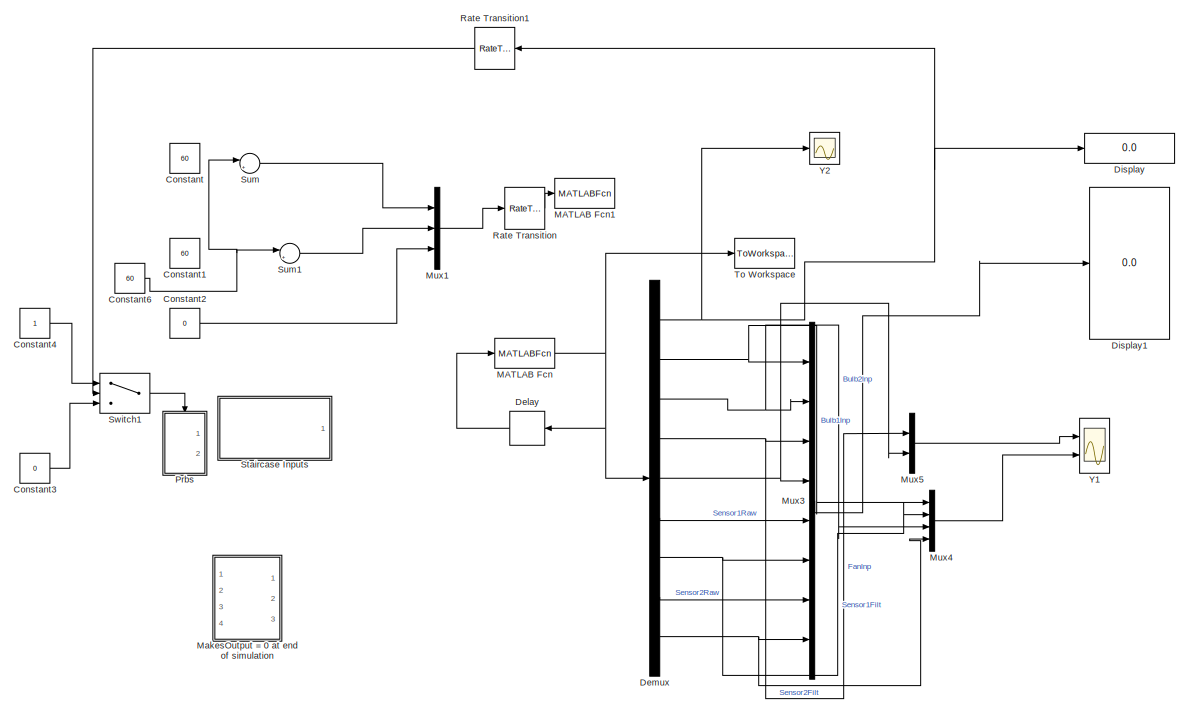
[diagram: root canvas - part 1/2, most of the canvas]
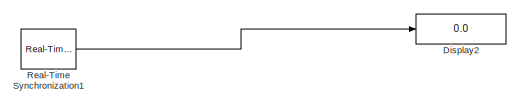
[diagram: root canvas - part 2/2, bottom right region]
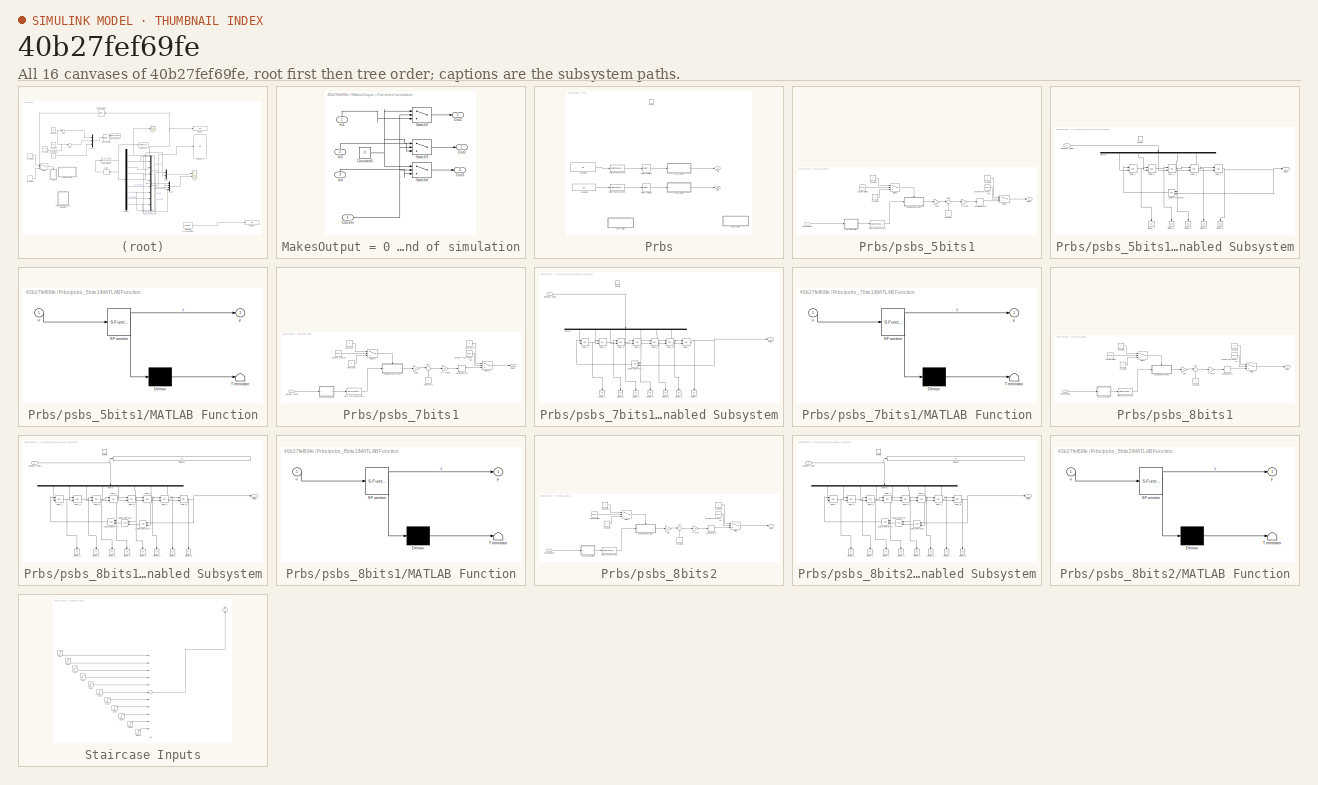
[diagram: thumbnail index - all 16 canvases of the model, root first then tree order]
MODEL slx_40b27fef69fe
KIND model
CONFIG AbsTol = auto
CONFIG EnableMultiTasking = on
CONFIG FixedStep = .01
CONFIG MaxStep = auto
CONFIG MinStep = auto
CONFIG RelTol = 1e-3
CONFIG SampleTimeConstraint = Unconstrained
CONFIG Solver = FixedStepDiscrete
CONFIG SolverName = FixedStepDiscrete
CONFIG StartFcn = s_2 = serial(Port,'BaudRate',115200,'FlowControl','none','Parity','none','DataBits',8,'StopBits',1,'Timeout',2);\ns_2.InputBufferSize=1024*5; s_2.OutputBufferSize=1024*5;\ns_2.Terminator='CR';\n\nfopen(s_2);\n
CONFIG StartTime = 0.0
CONFIG StopFcn = fclose(s_2);
CONFIG StopTime = inf
BLOCK [Constant] Constant
  Commented = on
  OutDataTypeStr = double
  SampleTime = 0.1
  Value = 60
BLOCK [Constant] Constant1
  Commented = on
  OutDataTypeStr = double
  SampleTime = 0.1
  Value = 60
BLOCK [Constant] Constant2
  Commented = on
  OutDataTypeStr = double
  SampleTime = 0.1
  Value = 0
BLOCK [Constant] Constant3
  Commented = on
  SampleTime = 0.1
  Value = 0
BLOCK [Constant] Constant4
  Commented = on
  SampleTime = 0.1
BLOCK [Constant] Constant6
  Commented = on
  OutDataTypeStr = double
  SampleTime = 0.1
  Value = 60
BLOCK [Delay] Delay
  DelayLength = 1
  InitialCondition = 0
  InputPortMap = u0
  Ports = [1, 1]
  SampleTime = 1
BLOCK [Demux] Demux
  DisplayOption = bar
  Outputs = 9
  Ports = [1, 9]
BLOCK [Display] Display
  Decimation = 1
  Ports = [1]
BLOCK [Display] Display1
  Decimation = 1
  Ports = [1]
BLOCK [Display] Display2
  Decimation = 1
  Ports = [1]
BLOCK [MATLABFcn] MATLAB Fcn
  MATLABFcn = serialRead(u,s_2)
  OutputDimensions = 9
  Ports = [1, 1]
BLOCK [MATLABFcn] MATLAB Fcn1
  Commented = on
  MATLABFcn = serialWriteLightBox(u,s_2)
  OutputDimensions = 0
  Ports = [1]
BLOCK [SubSystem] MakesOutput = 0 at end of simulation
  Commented = on
  Ports = [4, 3]
  RequestExecContextInheritance = off
  Variant = off
BLOCK [Inport] MakesOutput = 0 at end of simulation/ClockIn
  IconDisplay = Port number
  Port = 4
BLOCK [Constant] MakesOutput = 0 at end of simulation/Constant5
  SampleTime = 0.1
  Value = 0
BLOCK [Inport] MakesOutput = 0 at end of simulation/In1
  IconDisplay = Port number
BLOCK [Inport] MakesOutput = 0 at end of simulation/In3
  IconDisplay = Port number
  Port = 2
BLOCK [Inport] MakesOutput = 0 at end of simulation/In4
  IconDisplay = Port number
  Port = 3
BLOCK [Outport] MakesOutput = 0 at end of simulation/Out1
  IconDisplay = Port number
BLOCK [Outport] MakesOutput = 0 at end of simulation/Out2
  IconDisplay = Port number
  Port = 2
BLOCK [Outport] MakesOutput = 0 at end of simulation/Out3
  IconDisplay = Port number
  Port = 3
BLOCK [Switch] MakesOutput = 0 at end of simulation/Switch2
  InputSameDT = off
  SampleTime = 0.1
  SaturateOnIntegerOverflow = off
  Threshold = 1990
BLOCK [Switch] MakesOutput = 0 at end of simulation/Switch3
  InputSameDT = off
  SampleTime = 0.1
  SaturateOnIntegerOverflow = off
  Threshold = 1990
BLOCK [Switch] MakesOutput = 0 at end of simulation/Switch4
  InputSameDT = off
  SampleTime = 0.1
  SaturateOnIntegerOverflow = off
  Threshold = 1990
BLOCK [Mux] Mux1
  Commented = on
  DisplayOption = bar
  Inputs = 3
  Ports = [3, 1]
BLOCK [Mux] Mux3
  DisplayOption = bar
  Inputs = 8
  Ports = [8, 1]
BLOCK [Mux] Mux4
  DisplayOption = bar
  Ports = [4, 1]
BLOCK [Mux] Mux5
  DisplayOption = bar
  Inputs = 2
  Ports = [2, 1]
BLOCK [SubSystem] Prbs
  Commented = on
  Ports = [0, 2, 1]
  RequestExecContextInheritance = off
  Variant = off
BLOCK [Constant] Prbs/Constant1
  OutDataTypeStr = double
  SampleTime = 0.1
  Value = 29
BLOCK [Constant] Prbs/Constant2
  OutDataTypeStr = double
  SampleTime = 0.1
  Value = 30
BLOCK [DataTypeConversion] Prbs/Data Type Conversion
  OutDataTypeStr = uint16
  RndMeth = Floor
  SaturateOnIntegerOverflow = off
BLOCK [DataTypeConversion] Prbs/Data Type Conversion2
  OutDataTypeStr = uint16
  RndMeth = Floor
  SaturateOnIntegerOverflow = off
BLOCK [EnablePort] Prbs/Enable
  Ports = []
BLOCK [Outport] Prbs/Out1
  IconDisplay = Port number
BLOCK [Outport] Prbs/Out2
  IconDisplay = Port number
  Port = 2
BLOCK [RateTransition] Prbs/Rate Transition1
  OutPortSampleTime = 0.1
BLOCK [RateTransition] Prbs/Rate Transition2
  OutPortSampleTime = 0.1
BLOCK [SubSystem] Prbs/psbs_5bits1
  Commented = on
  Ports = [1, 1]
  RequestExecContextInheritance = off
  Variant = off
BLOCK [Gain] Prbs/psbs_5bits1/+//- Level1
  Gain = Lv
  OutDataTypeStr = Inherit: Inherit via internal rule
  ParamDataTypeStr = Inherit: Inherit via internal rule
  SampleTime = T
  SaturateOnIntegerOverflow = off
BLOCK [Constant] Prbs/psbs_5bits1/Constant2
  SampleTime = T
BLOCK [Constant] Prbs/psbs_5bits1/Constant4
  SampleTime = T
  Value = 0
BLOCK [Constant] Prbs/psbs_5bits1/Constant5
  SampleTime = T
  Value = 0
BLOCK [Constant] Prbs/psbs_5bits1/Constant6
  SampleTime = T
BLOCK [Reference] Prbs/psbs_5bits1/Counter Free-Running1  REF=simulink/Sources/Counter
Free-Running
  Ports = [0, 1]
  SourceBlock = simulink/Sources/Counter\nFree-Running
  SourceType = Counter Free-Running
BLOCK [Reference] Prbs/psbs_5bits1/Counter Limited  REF=simulink/Sources/Counter
Limited
  Ports = [0, 1]
  SourceBlock = simulink/Sources/Counter\nLimited
  SourceType = Counter Limited
BLOCK [DataTypeConversion] Prbs/psbs_5bits1/Data Type Conversion1
  OutDataTypeStr = int16
  RndMeth = Floor
  SaturateOnIntegerOverflow = off
BLOCK [SubSystem] Prbs/psbs_5bits1/Enabled Subsystem
  Ports = [1, 1, 1]
  RequestExecContextInheritance = off
  TreatAsAtomicUnit = on
  Variant = off
BLOCK [Demux] Prbs/psbs_5bits1/Enabled Subsystem/Demux
  DisplayOption = bar
  Outputs = 5
  Ports = [1, 5]
BLOCK [Display] Prbs/psbs_5bits1/Enabled Subsystem/Display_1
  Decimation = 1
  Ports = [1]
BLOCK [Display] Prbs/psbs_5bits1/Enabled Subsystem/Display_2
  Decimation = 1
  Ports = [1]
BLOCK [Display] Prbs/psbs_5bits1/Enabled Subsystem/Display_3
  Decimation = 1
  Ports = [1]
BLOCK [Display] Prbs/psbs_5bits1/Enabled Subsystem/Display_4
  Decimation = 1
  Ports = [1]
BLOCK [Display] Prbs/psbs_5bits1/Enabled Subsystem/Display_5
  Decimation = 1
  Ports = [1]
BLOCK [EnablePort] Prbs/psbs_5bits1/Enabled Subsystem/Enable
  Ports = []
BLOCK [Logic] Prbs/psbs_5bits1/Enabled Subsystem/Logical Operator2
  AllPortsSameDT = off
  Operator = XOR
  OutDataTypeStr = fixdt(1,16)
  Ports = [2, 1]
  SampleTime = T
BLOCK [Outport] Prbs/psbs_5bits1/Enabled Subsystem/PRBS
  IconDisplay = Port number
BLOCK [Inport] Prbs/psbs_5bits1/Enabled Subsystem/Random Seed
  IconDisplay = Port number
  OutDataTypeStr = int16
BLOCK [Reference] Prbs/psbs_5bits1/Enabled Subsystem/delay_1  REF=simulink/Additional Math
& Discrete/Additional
Discrete/Unit Delay
External IC
  Ports = [2, 1]
  SourceBlock = simulink/Additional Math\n& Discrete/Additional\nDiscrete/Unit Delay\nExternal IC
  SourceType = Unit Delay External Initial Condition
BLOCK [Reference] Prbs/psbs_5bits1/Enabled Subsystem/delay_2  REF=simulink/Additional Math
& Discrete/Additional
Discrete/Unit Delay
External IC
  Ports = [2, 1]
  SourceBlock = simulink/Additional Math\n& Discrete/Additional\nDiscrete/Unit Delay\nExternal IC
  SourceType = Unit Delay External Initial Condition
BLOCK [Reference] Prbs/psbs_5bits1/Enabled Subsystem/delay_3  REF=simulink/Additional Math
& Discrete/Additional
Discrete/Unit Delay
External IC
  Ports = [2, 1]
  SourceBlock = simulink/Additional Math\n& Discrete/Additional\nDiscrete/Unit Delay\nExternal IC
  SourceType = Unit Delay External Initial Condition
BLOCK [Reference] Prbs/psbs_5bits1/Enabled Subsystem/delay_4  REF=simulink/Additional Math
& Discrete/Additional
Discrete/Unit Delay
External IC
  Ports = [2, 1]
  SourceBlock = simulink/Additional Math\n& Discrete/Additional\nDiscrete/Unit Delay\nExternal IC
  SourceType = Unit Delay External Initial Condition
BLOCK [Reference] Prbs/psbs_5bits1/Enabled Subsystem/delay_5  REF=simulink/Additional Math
& Discrete/Additional
Discrete/Unit Delay
External IC
  Ports = [2, 1]
  SourceBlock = simulink/Additional Math\n& Discrete/Additional\nDiscrete/Unit Delay\nExternal IC
  SourceType = Unit Delay External Initial Condition
BLOCK [Gain] Prbs/psbs_5bits1/Gain1
  Gain = 2
  OutDataTypeStr = Inherit: Inherit via internal rule
  ParamDataTypeStr = Inherit: Inherit via internal rule
  SampleTime = T
  SaturateOnIntegerOverflow = off
BLOCK [Delay] Prbs/psbs_5bits1/LeadingZeros1
  DelayLength = Lz/T
  InitialCondition = 0
  InputPortMap = u0
  Ports = [1, 1]
  SampleTime = T
BLOCK [SubSystem] Prbs/psbs_5bits1/MATLAB Function
  ErrorFcn = Stateflow.Translate.translate
  PermitHierarchicalResolution = ExplicitOnly
  Ports = [1, 1]
  RequestExecContextInheritance = off
  SFBlockType = MATLAB Function
  TreatAsAtomicUnit = on
  Variant = off
BLOCK [Demux] Prbs/psbs_5bits1/MATLAB Function/ Demux 
  Outputs = 1
  Ports = [1, 1]
BLOCK [S-Function] Prbs/psbs_5bits1/MATLAB Function/ SFunction 
  EnableBusSupport = on
  FunctionName = sf_sfun
  PortCounts = [1 2]
  Ports = [1, 2]
  SFcnIsStateOwnerBlock = off
  SFunctionDeploymentMode = off
  Tag = Stateflow S-Function SerialMonitor_withPRBS 3
BLOCK [Terminator] Prbs/psbs_5bits1/MATLAB Function/ Terminator 
BLOCK [Inport] Prbs/psbs_5bits1/MATLAB Function/u
  IconDisplay = Port number
BLOCK [Outport] Prbs/psbs_5bits1/MATLAB Function/y
  IconDisplay = Port number
BLOCK [Outport] Prbs/psbs_5bits1/PRBS
  IconDisplay = Port number
BLOCK [Inport] Prbs/psbs_5bits1/Random Seed
  IconDisplay = Port number
  OutDataTypeStr = uint16
BLOCK [Sum] Prbs/psbs_5bits1/Sum1
  IconShape = round
  InputSameDT = off
  Inputs = |+-
  OutDataTypeStr = Inherit: Inherit via internal rule
  Ports = [2, 1]
  SampleTime = T
  SaturateOnIntegerOverflow = off
BLOCK [Switch] Prbs/psbs_5bits1/Switch1
  InputSameDT = off
  SampleTime = T
  SaturateOnIntegerOverflow = off
  Threshold = (Lz+(((Nc*(2^5-1))*Tsw)/T))
BLOCK [Switch] Prbs/psbs_5bits1/Switch2
  Criteria = u2 ~= 0
  InputSameDT = off
  SampleTime = T
  SaturateOnIntegerOverflow = off
  Threshold = Tsw/T
BLOCK [SubSystem] Prbs/psbs_7bits1
  Commented = on
  Ports = [1, 1]
  RequestExecContextInheritance = off
  Variant = off
BLOCK [Gain] Prbs/psbs_7bits1/+//- Level1
  Gain = Lv
  OutDataTypeStr = Inherit: Inherit via internal rule
  ParamDataTypeStr = Inherit: Inherit via internal rule
  SampleTime = T
  SaturateOnIntegerOverflow = off
BLOCK [Constant] Prbs/psbs_7bits1/Constant2
  SampleTime = T
BLOCK [Constant] Prbs/psbs_7bits1/Constant4
  SampleTime = T
  Value = 0
BLOCK [Constant] Prbs/psbs_7bits1/Constant5
  SampleTime = T
  Value = 0
BLOCK [Constant] Prbs/psbs_7bits1/Constant6
  SampleTime = T
BLOCK [Reference] Prbs/psbs_7bits1/Counter Free-Running1  REF=simulink/Sources/Counter
Free-Running
  Ports = [0, 1]
  SourceBlock = simulink/Sources/Counter\nFree-Running
  SourceType = Counter Free-Running
BLOCK [Reference] Prbs/psbs_7bits1/Counter Limited  REF=simulink/Sources/Counter
Limited
  Ports = [0, 1]
  SourceBlock = simulink/Sources/Counter\nLimited
  SourceType = Counter Limited
BLOCK [DataTypeConversion] Prbs/psbs_7bits1/Data Type Conversion1
  OutDataTypeStr = int16
  RndMeth = Floor
  SaturateOnIntegerOverflow = off
BLOCK [SubSystem] Prbs/psbs_7bits1/Enabled Subsystem
  Ports = [1, 1, 1]
  RequestExecContextInheritance = off
  TreatAsAtomicUnit = on
  Variant = off
BLOCK [Demux] Prbs/psbs_7bits1/Enabled Subsystem/Demux
  DisplayOption = bar
  Outputs = 7
  Ports = [1, 7]
BLOCK [Display] Prbs/psbs_7bits1/Enabled Subsystem/Display_1
  Decimation = 1
  Ports = [1]
BLOCK [Display] Prbs/psbs_7bits1/Enabled Subsystem/Display_2
  Decimation = 1
  Ports = [1]
BLOCK [Display] Prbs/psbs_7bits1/Enabled Subsystem/Display_3
  Decimation = 1
  Ports = [1]
BLOCK [Display] Prbs/psbs_7bits1/Enabled Subsystem/Display_4
  Decimation = 1
  Ports = [1]
BLOCK [Display] Prbs/psbs_7bits1/Enabled Subsystem/Display_5
  Decimation = 1
  Ports = [1]
BLOCK [Display] Prbs/psbs_7bits1/Enabled Subsystem/Display_6
  Decimation = 1
  Ports = [1]
BLOCK [Display] Prbs/psbs_7bits1/Enabled Subsystem/Display_7
  Decimation = 1
  Ports = [1]
BLOCK [EnablePort] Prbs/psbs_7bits1/Enabled Subsystem/Enable
  Ports = []
BLOCK [Logic] Prbs/psbs_7bits1/Enabled Subsystem/Logical Operator2
  AllPortsSameDT = off
  Operator = XOR
  OutDataTypeStr = fixdt(1,16)
  Ports = [2, 1]
  SampleTime = T
BLOCK [Outport] Prbs/psbs_7bits1/Enabled Subsystem/PRBS
  IconDisplay = Port number
BLOCK [Inport] Prbs/psbs_7bits1/Enabled Subsystem/Random Seed
  IconDisplay = Port number
  OutDataTypeStr = int16
BLOCK [Reference] Prbs/psbs_7bits1/Enabled Subsystem/delay_1  REF=simulink/Additional Math
& Discrete/Additional
Discrete/Unit Delay
External IC
  Ports = [2, 1]
  SourceBlock = simulink/Additional Math\n& Discrete/Additional\nDiscrete/Unit Delay\nExternal IC
  SourceType = Unit Delay External Initial Condition
BLOCK [Reference] Prbs/psbs_7bits1/Enabled Subsystem/delay_2  REF=simulink/Additional Math
& Discrete/Additional
Discrete/Unit Delay
External IC
  Ports = [2, 1]
  SourceBlock = simulink/Additional Math\n& Discrete/Additional\nDiscrete/Unit Delay\nExternal IC
  SourceType = Unit Delay External Initial Condition
BLOCK [Reference] Prbs/psbs_7bits1/Enabled Subsystem/delay_3  REF=simulink/Additional Math
& Discrete/Additional
Discrete/Unit Delay
External IC
  Ports = [2, 1]
  SourceBlock = simulink/Additional Math\n& Discrete/Additional\nDiscrete/Unit Delay\nExternal IC
  SourceType = Unit Delay External Initial Condition
BLOCK [Reference] Prbs/psbs_7bits1/Enabled Subsystem/delay_4  REF=simulink/Additional Math
& Discrete/Additional
Discrete/Unit Delay
External IC
  Ports = [2, 1]
  SourceBlock = simulink/Additional Math\n& Discrete/Additional\nDiscrete/Unit Delay\nExternal IC
  SourceType = Unit Delay External Initial Condition
BLOCK [Reference] Prbs/psbs_7bits1/Enabled Subsystem/delay_5  REF=simulink/Additional Math
& Discrete/Additional
Discrete/Unit Delay
External IC
  Ports = [2, 1]
  SourceBlock = simulink/Additional Math\n& Discrete/Additional\nDiscrete/Unit Delay\nExternal IC
  SourceType = Unit Delay External Initial Condition
BLOCK [Reference] Prbs/psbs_7bits1/Enabled Subsystem/delay_6  REF=simulink/Additional Math
& Discrete/Additional
Discrete/Unit Delay
External IC
  Ports = [2, 1]
  SourceBlock = simulink/Additional Math\n& Discrete/Additional\nDiscrete/Unit Delay\nExternal IC
  SourceType = Unit Delay External Initial Condition
BLOCK [Reference] Prbs/psbs_7bits1/Enabled Subsystem/delay_7  REF=simulink/Additional Math
& Discrete/Additional
Discrete/Unit Delay
External IC
  Ports = [2, 1]
  SourceBlock = simulink/Additional Math\n& Discrete/Additional\nDiscrete/Unit Delay\nExternal IC
  SourceType = Unit Delay External Initial Condition
BLOCK [Gain] Prbs/psbs_7bits1/Gain1
  Gain = 2
  OutDataTypeStr = Inherit: Inherit via internal rule
  ParamDataTypeStr = Inherit: Inherit via internal rule
  SampleTime = T
  SaturateOnIntegerOverflow = off
BLOCK [Delay] Prbs/psbs_7bits1/LeadingZeros1
  DelayLength = Lz/T
  InitialCondition = 0
  InputPortMap = u0
  Ports = [1, 1]
  SampleTime = T
BLOCK [SubSystem] Prbs/psbs_7bits1/MATLAB Function
  ErrorFcn = Stateflow.Translate.translate
  PermitHierarchicalResolution = ExplicitOnly
  Ports = [1, 1]
  RequestExecContextInheritance = off
  SFBlockType = MATLAB Function
  TreatAsAtomicUnit = on
  Variant = off
BLOCK [Demux] Prbs/psbs_7bits1/MATLAB Function/ Demux 
  Outputs = 1
  Ports = [1, 1]
BLOCK [S-Function] Prbs/psbs_7bits1/MATLAB Function/ SFunction 
  EnableBusSupport = on
  FunctionName = sf_sfun
  PortCounts = [1 2]
  Ports = [1, 2]
  SFcnIsStateOwnerBlock = off
  SFunctionDeploymentMode = off
  Tag = Stateflow S-Function SerialMonitor_withPRBS 2
BLOCK [Terminator] Prbs/psbs_7bits1/MATLAB Function/ Terminator 
BLOCK [Inport] Prbs/psbs_7bits1/MATLAB Function/u
  IconDisplay = Port number
BLOCK [Outport] Prbs/psbs_7bits1/MATLAB Function/y
  IconDisplay = Port number
BLOCK [Outport] Prbs/psbs_7bits1/PRBS
  IconDisplay = Port number
BLOCK [Inport] Prbs/psbs_7bits1/Random Seed
  IconDisplay = Port number
  OutDataTypeStr = uint16
BLOCK [Sum] Prbs/psbs_7bits1/Sum1
  IconShape = round
  InputSameDT = off
  Inputs = |+-
  OutDataTypeStr = Inherit: Inherit via internal rule
  Ports = [2, 1]
  SampleTime = T
  SaturateOnIntegerOverflow = off
BLOCK [Switch] Prbs/psbs_7bits1/Switch1
  InputSameDT = off
  SampleTime = T
  SaturateOnIntegerOverflow = off
  Threshold = (Lz+(((Nc*(2^7-1))*Tsw)/T))
BLOCK [Switch] Prbs/psbs_7bits1/Switch2
  Criteria = u2 ~= 0
  InputSameDT = off
  SampleTime = T
  SaturateOnIntegerOverflow = off
  Threshold = Tsw/T
BLOCK [SubSystem] Prbs/psbs_8bits1
  Ports = [1, 1]
  RequestExecContextInheritance = off
  Variant = off
BLOCK [Gain] Prbs/psbs_8bits1/+//- Level
  Gain = Lv
  OutDataTypeStr = Inherit: Inherit via internal rule
  ParamDataTypeStr = Inherit: Inherit via internal rule
  SampleTime = T
  SaturateOnIntegerOverflow = off
BLOCK [Constant] Prbs/psbs_8bits1/Constant1
  SampleTime = T
BLOCK [Constant] Prbs/psbs_8bits1/Constant2
  SampleTime = T
  Value = 0
BLOCK [Constant] Prbs/psbs_8bits1/Constant3
  SampleTime = T
  Value = 0
BLOCK [Constant] Prbs/psbs_8bits1/Constant4
  SampleTime = T
BLOCK [Reference] Prbs/psbs_8bits1/Counter Free-Running  REF=simulink/Sources/Counter
Free-Running
  Ports = [0, 1]
  SourceBlock = simulink/Sources/Counter\nFree-Running
  SourceType = Counter Free-Running
BLOCK [Reference] Prbs/psbs_8bits1/Counter Limited  REF=simulink/Sources/Counter
Limited
  Ports = [0, 1]
  SourceBlock = simulink/Sources/Counter\nLimited
  SourceType = Counter Limited
BLOCK [DataTypeConversion] Prbs/psbs_8bits1/Data Type Conversion
  OutDataTypeStr = int16
  RndMeth = Floor
  SaturateOnIntegerOverflow = off
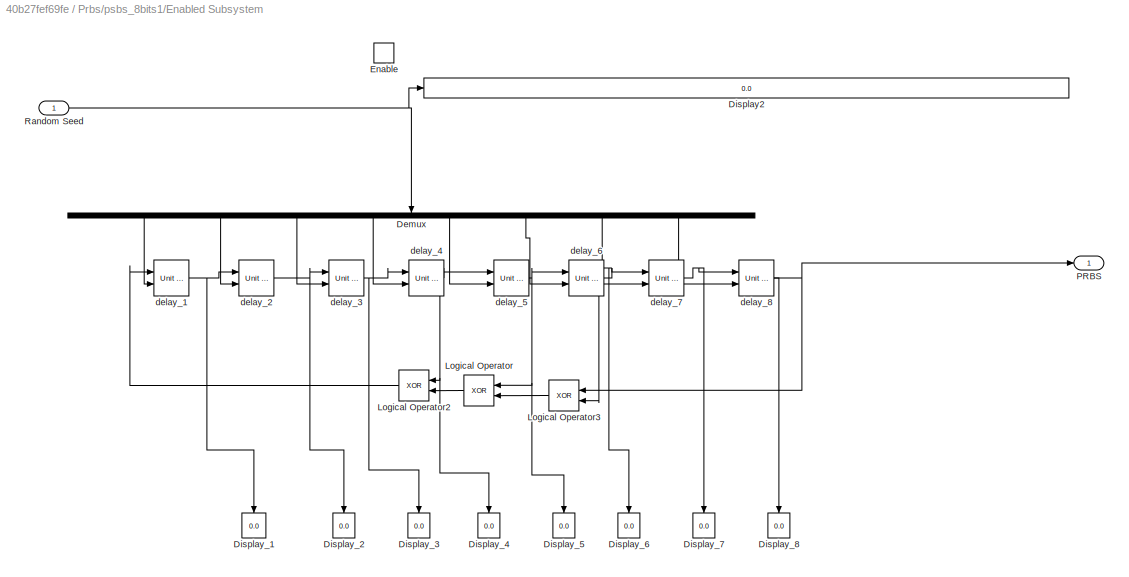
BLOCK [SubSystem] Prbs/psbs_8bits1/Enabled Subsystem
  Ports = [1, 1, 1]
  RequestExecContextInheritance = off
  TreatAsAtomicUnit = on
  Variant = off
BLOCK [Demux] Prbs/psbs_8bits1/Enabled Subsystem/Demux
  DisplayOption = bar
  Outputs = 8
  Ports = [1, 8]
BLOCK [Display] Prbs/psbs_8bits1/Enabled Subsystem/Display2
  Decimation = 1
  Ports = [1]
BLOCK [Display] Prbs/psbs_8bits1/Enabled Subsystem/Display_1
  Decimation = 1
  Ports = [1]
BLOCK [Display] Prbs/psbs_8bits1/Enabled Subsystem/Display_2
  Decimation = 1
  Ports = [1]
BLOCK [Display] Prbs/psbs_8bits1/Enabled Subsystem/Display_3
  Decimation = 1
  Ports = [1]
BLOCK [Display] Prbs/psbs_8bits1/Enabled Subsystem/Display_4
  Decimation = 1
  Ports = [1]
BLOCK [Display] Prbs/psbs_8bits1/Enabled Subsystem/Display_5
  Decimation = 1
  Ports = [1]
BLOCK [Display] Prbs/psbs_8bits1/Enabled Subsystem/Display_6
  Decimation = 1
  Ports = [1]
BLOCK [Display] Prbs/psbs_8bits1/Enabled Subsystem/Display_7
  Decimation = 1
  Ports = [1]
BLOCK [Display] Prbs/psbs_8bits1/Enabled Subsystem/Display_8
  Decimation = 1
  Ports = [1]
BLOCK [EnablePort] Prbs/psbs_8bits1/Enabled Subsystem/Enable
  Ports = []
BLOCK [Logic] Prbs/psbs_8bits1/Enabled Subsystem/Logical Operator
  AllPortsSameDT = off
  Operator = XOR
  OutDataTypeStr = fixdt(1,16)
  Ports = [2, 1]
  SampleTime = T
BLOCK [Logic] Prbs/psbs_8bits1/Enabled Subsystem/Logical Operator2
  AllPortsSameDT = off
  Operator = XOR
  OutDataTypeStr = fixdt(1,16)
  Ports = [2, 1]
  SampleTime = T
BLOCK [Logic] Prbs/psbs_8bits1/Enabled Subsystem/Logical Operator3
  AllPortsSameDT = off
  Operator = XOR
  OutDataTypeStr = fixdt(1,16)
  Ports = [2, 1]
  SampleTime = T
BLOCK [Outport] Prbs/psbs_8bits1/Enabled Subsystem/PRBS
  IconDisplay = Port number
BLOCK [Inport] Prbs/psbs_8bits1/Enabled Subsystem/Random Seed
  IconDisplay = Port number
  OutDataTypeStr = int16
BLOCK [Reference] Prbs/psbs_8bits1/Enabled Subsystem/delay_1  REF=simulink/Additional Math
& Discrete/Additional
Discrete/Unit Delay
External IC
  Ports = [2, 1]
  SourceBlock = simulink/Additional Math\n& Discrete/Additional\nDiscrete/Unit Delay\nExternal IC
  SourceType = Unit Delay External Initial Condition
BLOCK [Reference] Prbs/psbs_8bits1/Enabled Subsystem/delay_2  REF=simulink/Additional Math
& Discrete/Additional
Discrete/Unit Delay
External IC
  Ports = [2, 1]
  SourceBlock = simulink/Additional Math\n& Discrete/Additional\nDiscrete/Unit Delay\nExternal IC
  SourceType = Unit Delay External Initial Condition
BLOCK [Reference] Prbs/psbs_8bits1/Enabled Subsystem/delay_3  REF=simulink/Additional Math
& Discrete/Additional
Discrete/Unit Delay
External IC
  Ports = [2, 1]
  SourceBlock = simulink/Additional Math\n& Discrete/Additional\nDiscrete/Unit Delay\nExternal IC
  SourceType = Unit Delay External Initial Condition
BLOCK [Reference] Prbs/psbs_8bits1/Enabled Subsystem/delay_4  REF=simulink/Additional Math
& Discrete/Additional
Discrete/Unit Delay
External IC
  Ports = [2, 1]
  SourceBlock = simulink/Additional Math\n& Discrete/Additional\nDiscrete/Unit Delay\nExternal IC
  SourceType = Unit Delay External Initial Condition
BLOCK [Reference] Prbs/psbs_8bits1/Enabled Subsystem/delay_5  REF=simulink/Additional Math
& Discrete/Additional
Discrete/Unit Delay
External IC
  Ports = [2, 1]
  SourceBlock = simulink/Additional Math\n& Discrete/Additional\nDiscrete/Unit Delay\nExternal IC
  SourceType = Unit Delay External Initial Condition
BLOCK [Reference] Prbs/psbs_8bits1/Enabled Subsystem/delay_6  REF=simulink/Additional Math
& Discrete/Additional
Discrete/Unit Delay
External IC
  Ports = [2, 1]
  SourceBlock = simulink/Additional Math\n& Discrete/Additional\nDiscrete/Unit Delay\nExternal IC
  SourceType = Unit Delay External Initial Condition
BLOCK [Reference] Prbs/psbs_8bits1/Enabled Subsystem/delay_7  REF=simulink/Additional Math
& Discrete/Additional
Discrete/Unit Delay
External IC
  Ports = [2, 1]
  SourceBlock = simulink/Additional Math\n& Discrete/Additional\nDiscrete/Unit Delay\nExternal IC
  SourceType = Unit Delay External Initial Condition
BLOCK [Reference] Prbs/psbs_8bits1/Enabled Subsystem/delay_8  REF=simulink/Additional Math
& Discrete/Additional
Discrete/Unit Delay
External IC
  Ports = [2, 1]
  SourceBlock = simulink/Additional Math\n& Discrete/Additional\nDiscrete/Unit Delay\nExternal IC
  SourceType = Unit Delay External Initial Condition
BLOCK [Gain] Prbs/psbs_8bits1/Gain
  Gain = 2
  OutDataTypeStr = Inherit: Inherit via internal rule
  ParamDataTypeStr = Inherit: Inherit via internal rule
  SampleTime = T
  SaturateOnIntegerOverflow = off
BLOCK [Delay] Prbs/psbs_8bits1/LeadingZeros
  DelayLength = Lz/T
  InitialCondition = 0
  InputPortMap = u0
  Ports = [1, 1]
  SampleTime = T
BLOCK [SubSystem] Prbs/psbs_8bits1/MATLAB Function
  ErrorFcn = Stateflow.Translate.translate
  PermitHierarchicalResolution = ExplicitOnly
  Ports = [1, 1]
  RequestExecContextInheritance = off
  SFBlockType = MATLAB Function
  TreatAsAtomicUnit = on
  Variant = off
BLOCK [Demux] Prbs/psbs_8bits1/MATLAB Function/ Demux 
  Outputs = 1
  Ports = [1, 1]
BLOCK [S-Function] Prbs/psbs_8bits1/MATLAB Function/ SFunction 
  EnableBusSupport = on
  FunctionName = sf_sfun
  PortCounts = [1 2]
  Ports = [1, 2]
  SFcnIsStateOwnerBlock = off
  SFunctionDeploymentMode = off
  Tag = Stateflow S-Function SerialMonitor_withPRBS 1
BLOCK [Terminator] Prbs/psbs_8bits1/MATLAB Function/ Terminator 
BLOCK [Inport] Prbs/psbs_8bits1/MATLAB Function/u
  IconDisplay = Port number
BLOCK [Outport] Prbs/psbs_8bits1/MATLAB Function/y
  IconDisplay = Port number
BLOCK [Outport] Prbs/psbs_8bits1/PRBS
  IconDisplay = Port number
BLOCK [Inport] Prbs/psbs_8bits1/Random Seed
  IconDisplay = Port number
  OutDataTypeStr = uint16
  SampleTime = 0.1
BLOCK [Sum] Prbs/psbs_8bits1/Sum
  IconShape = round
  InputSameDT = off
  Inputs = |+-
  OutDataTypeStr = Inherit: Inherit via internal rule
  Ports = [2, 1]
  SampleTime = T
  SaturateOnIntegerOverflow = off
BLOCK [Switch] Prbs/psbs_8bits1/Switch
  InputSameDT = off
  SampleTime = T
  SaturateOnIntegerOverflow = off
  Threshold = (Lz+(((Nc*(2^8-1))*Tsw)/T))
BLOCK [Switch] Prbs/psbs_8bits1/Switch1
  Criteria = u2 ~= 0
  InputSameDT = off
  SampleTime = T
  SaturateOnIntegerOverflow = off
  Threshold = Tsw/T
BLOCK [SubSystem] Prbs/psbs_8bits2
  Ports = [1, 1]
  RequestExecContextInheritance = off
  Variant = off
BLOCK [Gain] Prbs/psbs_8bits2/+//- Level
  Gain = Lv
  OutDataTypeStr = Inherit: Inherit via internal rule
  ParamDataTypeStr = Inherit: Inherit via internal rule
  SampleTime = T
  SaturateOnIntegerOverflow = off
BLOCK [Constant] Prbs/psbs_8bits2/Constant1
  SampleTime = T
BLOCK [Constant] Prbs/psbs_8bits2/Constant2
  SampleTime = T
  Value = 0
BLOCK [Constant] Prbs/psbs_8bits2/Constant3
  SampleTime = T
  Value = 0
BLOCK [Constant] Prbs/psbs_8bits2/Constant4
  SampleTime = T
BLOCK [Reference] Prbs/psbs_8bits2/Counter Free-Running  REF=simulink/Sources/Counter
Free-Running
  Ports = [0, 1]
  SourceBlock = simulink/Sources/Counter\nFree-Running
  SourceType = Counter Free-Running
BLOCK [Reference] Prbs/psbs_8bits2/Counter Limited  REF=simulink/Sources/Counter
Limited
  Ports = [0, 1]
  SourceBlock = simulink/Sources/Counter\nLimited
  SourceType = Counter Limited
BLOCK [DataTypeConversion] Prbs/psbs_8bits2/Data Type Conversion
  OutDataTypeStr = int16
  RndMeth = Floor
  SaturateOnIntegerOverflow = off
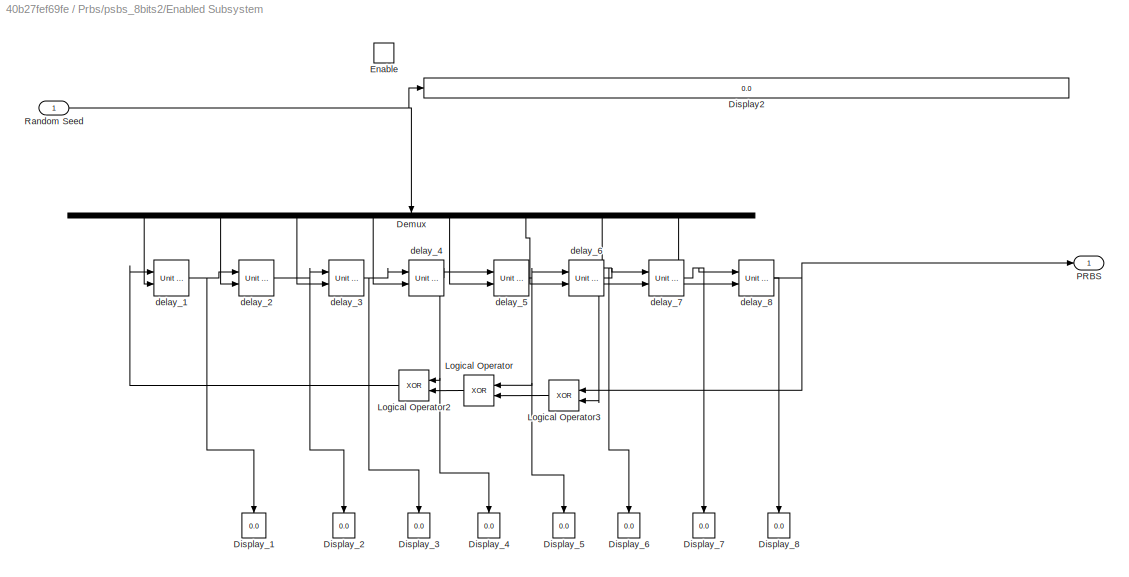
BLOCK [SubSystem] Prbs/psbs_8bits2/Enabled Subsystem
  Ports = [1, 1, 1]
  RequestExecContextInheritance = off
  TreatAsAtomicUnit = on
  Variant = off
BLOCK [Demux] Prbs/psbs_8bits2/Enabled Subsystem/Demux
  DisplayOption = bar
  Outputs = 8
  Ports = [1, 8]
BLOCK [Display] Prbs/psbs_8bits2/Enabled Subsystem/Display2
  Decimation = 1
  Ports = [1]
BLOCK [Display] Prbs/psbs_8bits2/Enabled Subsystem/Display_1
  Decimation = 1
  Ports = [1]
BLOCK [Display] Prbs/psbs_8bits2/Enabled Subsystem/Display_2
  Decimation = 1
  Ports = [1]
BLOCK [Display] Prbs/psbs_8bits2/Enabled Subsystem/Display_3
  Decimation = 1
  Ports = [1]
BLOCK [Display] Prbs/psbs_8bits2/Enabled Subsystem/Display_4
  Decimation = 1
  Ports = [1]
BLOCK [Display] Prbs/psbs_8bits2/Enabled Subsystem/Display_5
  Decimation = 1
  Ports = [1]
BLOCK [Display] Prbs/psbs_8bits2/Enabled Subsystem/Display_6
  Decimation = 1
  Ports = [1]
BLOCK [Display] Prbs/psbs_8bits2/Enabled Subsystem/Display_7
  Decimation = 1
  Ports = [1]
BLOCK [Display] Prbs/psbs_8bits2/Enabled Subsystem/Display_8
  Decimation = 1
  Ports = [1]
BLOCK [EnablePort] Prbs/psbs_8bits2/Enabled Subsystem/Enable
  Ports = []
BLOCK [Logic] Prbs/psbs_8bits2/Enabled Subsystem/Logical Operator
  AllPortsSameDT = off
  Operator = XOR
  OutDataTypeStr = fixdt(1,16)
  Ports = [2, 1]
  SampleTime = T
BLOCK [Logic] Prbs/psbs_8bits2/Enabled Subsystem/Logical Operator2
  AllPortsSameDT = off
  Operator = XOR
  OutDataTypeStr = fixdt(1,16)
  Ports = [2, 1]
  SampleTime = T
BLOCK [Logic] Prbs/psbs_8bits2/Enabled Subsystem/Logical Operator3
  AllPortsSameDT = off
  Operator = XOR
  OutDataTypeStr = fixdt(1,16)
  Ports = [2, 1]
  SampleTime = T
BLOCK [Outport] Prbs/psbs_8bits2/Enabled Subsystem/PRBS
  IconDisplay = Port number
BLOCK [Inport] Prbs/psbs_8bits2/Enabled Subsystem/Random Seed
  IconDisplay = Port number
  OutDataTypeStr = int16
BLOCK [Reference] Prbs/psbs_8bits2/Enabled Subsystem/delay_1  REF=simulink/Additional Math
& Discrete/Additional
Discrete/Unit Delay
External IC
  Ports = [2, 1]
  SourceBlock = simulink/Additional Math\n& Discrete/Additional\nDiscrete/Unit Delay\nExternal IC
  SourceType = Unit Delay External Initial Condition
BLOCK [Reference] Prbs/psbs_8bits2/Enabled Subsystem/delay_2  REF=simulink/Additional Math
& Discrete/Additional
Discrete/Unit Delay
External IC
  Ports = [2, 1]
  SourceBlock = simulink/Additional Math\n& Discrete/Additional\nDiscrete/Unit Delay\nExternal IC
  SourceType = Unit Delay External Initial Condition
BLOCK [Reference] Prbs/psbs_8bits2/Enabled Subsystem/delay_3  REF=simulink/Additional Math
& Discrete/Additional
Discrete/Unit Delay
External IC
  Ports = [2, 1]
  SourceBlock = simulink/Additional Math\n& Discrete/Additional\nDiscrete/Unit Delay\nExternal IC
  SourceType = Unit Delay External Initial Condition
BLOCK [Reference] Prbs/psbs_8bits2/Enabled Subsystem/delay_4  REF=simulink/Additional Math
& Discrete/Additional
Discrete/Unit Delay
External IC
  Ports = [2, 1]
  SourceBlock = simulink/Additional Math\n& Discrete/Additional\nDiscrete/Unit Delay\nExternal IC
  SourceType = Unit Delay External Initial Condition
BLOCK [Reference] Prbs/psbs_8bits2/Enabled Subsystem/delay_5  REF=simulink/Additional Math
& Discrete/Additional
Discrete/Unit Delay
External IC
  Ports = [2, 1]
  SourceBlock = simulink/Additional Math\n& Discrete/Additional\nDiscrete/Unit Delay\nExternal IC
  SourceType = Unit Delay External Initial Condition
BLOCK [Reference] Prbs/psbs_8bits2/Enabled Subsystem/delay_6  REF=simulink/Additional Math
& Discrete/Additional
Discrete/Unit Delay
External IC
  Ports = [2, 1]
  SourceBlock = simulink/Additional Math\n& Discrete/Additional\nDiscrete/Unit Delay\nExternal IC
  SourceType = Unit Delay External Initial Condition
BLOCK [Reference] Prbs/psbs_8bits2/Enabled Subsystem/delay_7  REF=simulink/Additional Math
& Discrete/Additional
Discrete/Unit Delay
External IC
  Ports = [2, 1]
  SourceBlock = simulink/Additional Math\n& Discrete/Additional\nDiscrete/Unit Delay\nExternal IC
  SourceType = Unit Delay External Initial Condition
BLOCK [Reference] Prbs/psbs_8bits2/Enabled Subsystem/delay_8  REF=simulink/Additional Math
& Discrete/Additional
Discrete/Unit Delay
External IC
  Ports = [2, 1]
  SourceBlock = simulink/Additional Math\n& Discrete/Additional\nDiscrete/Unit Delay\nExternal IC
  SourceType = Unit Delay External Initial Condition
BLOCK [Gain] Prbs/psbs_8bits2/Gain
  Gain = 2
  OutDataTypeStr = Inherit: Inherit via internal rule
  ParamDataTypeStr = Inherit: Inherit via internal rule
  SampleTime = T
  SaturateOnIntegerOverflow = off
BLOCK [Delay] Prbs/psbs_8bits2/LeadingZeros
  DelayLength = Lz/T
  InitialCondition = 0
  InputPortMap = u0
  Ports = [1, 1]
  SampleTime = T
BLOCK [SubSystem] Prbs/psbs_8bits2/MATLAB Function
  ErrorFcn = Stateflow.Translate.translate
  PermitHierarchicalResolution = ExplicitOnly
  Ports = [1, 1]
  RequestExecContextInheritance = off
  SFBlockType = MATLAB Function
  TreatAsAtomicUnit = on
  Variant = off
BLOCK [Demux] Prbs/psbs_8bits2/MATLAB Function/ Demux 
  Outputs = 1
  Ports = [1, 1]
BLOCK [S-Function] Prbs/psbs_8bits2/MATLAB Function/ SFunction 
  EnableBusSupport = on
  FunctionName = sf_sfun
  PortCounts = [1 2]
  Ports = [1, 2]
  SFcnIsStateOwnerBlock = off
  SFunctionDeploymentMode = off
  Tag = Stateflow S-Function SerialMonitor_withPRBS 4
BLOCK [Terminator] Prbs/psbs_8bits2/MATLAB Function/ Terminator 
BLOCK [Inport] Prbs/psbs_8bits2/MATLAB Function/u
  IconDisplay = Port number
BLOCK [Outport] Prbs/psbs_8bits2/MATLAB Function/y
  IconDisplay = Port number
BLOCK [Outport] Prbs/psbs_8bits2/PRBS
  IconDisplay = Port number
BLOCK [Inport] Prbs/psbs_8bits2/Random Seed
  IconDisplay = Port number
  OutDataTypeStr = uint16
  SampleTime = 0.1
BLOCK [Sum] Prbs/psbs_8bits2/Sum
  IconShape = round
  InputSameDT = off
  Inputs = |+-
  OutDataTypeStr = Inherit: Inherit via internal rule
  Ports = [2, 1]
  SampleTime = T
  SaturateOnIntegerOverflow = off
BLOCK [Switch] Prbs/psbs_8bits2/Switch
  InputSameDT = off
  SampleTime = T
  SaturateOnIntegerOverflow = off
  Threshold = (Lz+(((Nc*(2^8-1))*Tsw)/T))
BLOCK [Switch] Prbs/psbs_8bits2/Switch1
  Criteria = u2 ~= 0
  InputSameDT = off
  SampleTime = T
  SaturateOnIntegerOverflow = off
  Threshold = Tsw/T
BLOCK [RateTransition] Rate Transition
  Commented = on
  Deterministic = off
  OutPortSampleTime = 1
BLOCK [RateTransition] Rate Transition1
  Commented = on
  OutPortSampleTime = 0.1
BLOCK [Reference] Real-Time Synchronization1  REF=sldrtlib/Real-Time
Synchronization
  Ports = [0, 1]
  SourceBlock = sldrtlib/Real-Time\nSynchronization
  SourceType = Simulink Desktop Real-Time Synchronization
BLOCK [SubSystem] Staircase Inputs
  Ports = [0, 1]
  RequestExecContextInheritance = off
  Variant = off
BLOCK [Step] Staircase Inputs/1200
  After = 400
  SampleTime = 0.1
  Time = 70*60
BLOCK [Step] Staircase Inputs/1600
  After = 400
  SampleTime = 0.1
  Time = 100*60
BLOCK [Step] Staircase Inputs/2000
  After = 400
  SampleTime = 0.1
  Time = 130*60
BLOCK [Step] Staircase Inputs/2400
  After = 400
  SampleTime = 0.1
  Time = 160*60
BLOCK [Step] Staircase Inputs/2800
  After = 400
  SampleTime = 0.1
  Time = 190*60
BLOCK [Step] Staircase Inputs/3200
  After = 400
  SampleTime = 0.1
  Time = 220*60
BLOCK [Step] Staircase Inputs/3600
  After = 400
  SampleTime = 0.1
  Time = 250*60
BLOCK [Step] Staircase Inputs/400
  After = 400
  SampleTime = 0.1
  Time = 100
BLOCK [Step] Staircase Inputs/4095
  After = 495
  SampleTime = 0.1
  Time = 280*60
BLOCK [Step] Staircase Inputs/800
  After = 400
  SampleTime = 0.1
  Time = 40*60
BLOCK [Sum] Staircase Inputs/Add
  InputSameDT = off
  Inputs = +++++++++++
  OutDataTypeStr = Inherit: Inherit via internal rule
  Ports = [11, 1]
  SaturateOnIntegerOverflow = off
BLOCK [Outport] Staircase Inputs/Out1
  IconDisplay = Port number
BLOCK [Step] Staircase Inputs/Step10
  After = -4095
  SampleTime = 0.1
  Time = 310*60
BLOCK [Sum] Sum
  Commented = on
  IconShape = round
  InputSameDT = off
  Inputs = |++
  OutDataTypeStr = Inherit: Inherit via internal rule
  Ports = [2, 1]
  SaturateOnIntegerOverflow = off
BLOCK [Sum] Sum1
  Commented = on
  IconShape = round
  InputSameDT = off
  Inputs = |++
  OutDataTypeStr = Inherit: Inherit via internal rule
  Ports = [2, 1]
  SaturateOnIntegerOverflow = off
BLOCK [Switch] Switch1
  Commented = on
  InputSameDT = off
  SampleTime = 0.1
  SaturateOnIntegerOverflow = off
  Threshold = 900
BLOCK [ToWorkspace] To Workspace
  FixptAsFi = on
  MaxDataPoints = inf
  Ports = [1]
  SampleTime = -1
  Save2DSignal = 3-D array (concatenate along third dimension)
  SaveFormat = Structure With Time
  VariableName = simout
BLOCK [Scope] Y1
  NumInputPorts = 2
  Ports = [2]
  ScopeSpecificationString = Simulink.scopes.TimeScopeBlockCfg('CurrentConfiguration', extmgr.ConfigurationSet(extmgr.Configuration('Core','General UI',true),extmgr.Configuration('Core','Source UI',true),extmgr.Configuration('Sources','WiredSimulink',true,'DataLoggingSaveFormat','StructureWithTime','DataLoggingDecimation','1','DataLoggingDecimateData',true),extmgr.Configuration('Visuals','Time Domain',true,'SerializedDisplays...<+2426ch>
BLOCK [Scope] Y2
  NumInputPorts = 1
  Ports = [1]
  ScopeSpecificationString = Simulink.scopes.TimeScopeBlockCfg('CurrentConfiguration', extmgr.ConfigurationSet(extmgr.Configuration('Core','General UI',true),extmgr.Configuration('Core','Source UI',true),extmgr.Configuration('Sources','WiredSimulink',true,'DataLoggingSaveFormat','StructureWithTime','DataLoggingDecimation','1','DataLoggingDecimateData',true,'DataLoggingVariableName','ScopeData1'),extmgr.Configuration('Visuals'...<+1721ch>
LINE Constant2:1 -> Mux1:3
LINE Constant3:1 -> Switch1:3
LINE Constant4:1 -> Switch1:1
NET Constant6:1 -> Sum1:1, Sum:1
LINE Delay:1 -> MATLAB Fcn:1
NET Demux:1 -> Display:1, Rate Transition1:1, Y2:1
NET Demux:2 -> Mux3:1, Mux4:1
NET Demux:3 -> Mux3:2, Mux4:3
NET Demux:4 -> Mux3:3, Mux5:1
NET Demux:5 -> Mux3:4, Mux5:2
LINE Demux:6 -> Mux3:5
NET Demux:7 -> Mux3:6, Mux4:2
LINE Demux:8 -> Mux3:7
NET Demux:9 -> Mux3:8, Mux4:4
NET MATLAB Fcn:1 -> Delay:1, Demux:1, To Workspace:1
NET MakesOutput = 0 at end of simulation/ClockIn:1 -> MakesOutput = 0 at end of simulation/Switch2:2, MakesOutput = 0 at end of simulation/Switch3:2, MakesOutput = 0 at end of simulation/Switch4:2
NET MakesOutput = 0 at end of simulation/Constant5:1 -> MakesOutput = 0 at end of simulation/Switch2:1, MakesOutput = 0 at end of simulation/Switch3:1, MakesOutput = 0 at end of simulation/Switch4:1
LINE MakesOutput = 0 at end of simulation/In1:1 -> MakesOutput = 0 at end of simulation/Switch2:3
LINE MakesOutput = 0 at end of simulation/In3:1 -> MakesOutput = 0 at end of simulation/Switch3:3
LINE MakesOutput = 0 at end of simulation/In4:1 -> MakesOutput = 0 at end of simulation/Switch4:3
LINE MakesOutput = 0 at end of simulation/Switch2:1 -> MakesOutput = 0 at end of simulation/Out1:1
LINE MakesOutput = 0 at end of simulation/Switch3:1 -> MakesOutput = 0 at end of simulation/Out2:1
LINE MakesOutput = 0 at end of simulation/Switch4:1 -> MakesOutput = 0 at end of simulation/Out3:1
LINE Mux1:1 -> Rate Transition:1
LINE Mux3:1 -> Display1:1
LINE Mux4:1 -> Y1:2
LINE Mux5:1 -> Y1:1
LINE Prbs/Constant1:1 -> Prbs/Data Type Conversion:1
LINE Prbs/Constant2:1 -> Prbs/Data Type Conversion2:1
LINE Prbs/Data Type Conversion2:1 -> Prbs/Rate Transition2:1
LINE Prbs/Data Type Conversion:1 -> Prbs/Rate Transition1:1
LINE Prbs/Rate Transition1:1 -> Prbs/psbs_8bits1:1
LINE Prbs/Rate Transition2:1 -> Prbs/psbs_8bits2:1
LINE Prbs/psbs_5bits1/+//- Level1:1 -> Prbs/psbs_5bits1/LeadingZeros1:1
LINE Prbs/psbs_5bits1/Constant2:1 -> Prbs/psbs_5bits1/Sum1:2
LINE Prbs/psbs_5bits1/Constant4:1 -> Prbs/psbs_5bits1/Switch2:1
LINE Prbs/psbs_5bits1/Constant5:1 -> Prbs/psbs_5bits1/Switch1:1
LINE Prbs/psbs_5bits1/Constant6:1 -> Prbs/psbs_5bits1/Switch2:3
LINE Prbs/psbs_5bits1/Counter Free-Running1:1 -> Prbs/psbs_5bits1/Switch1:2
LINE Prbs/psbs_5bits1/Counter Limited:1 -> Prbs/psbs_5bits1/Switch2:2
LINE Prbs/psbs_5bits1/Data Type Conversion1:1 -> Prbs/psbs_5bits1/Enabled Subsystem:1
LINE Prbs/psbs_5bits1/Enabled Subsystem/Demux:1 -> Prbs/psbs_5bits1/Enabled Subsystem/delay_1:2
LINE Prbs/psbs_5bits1/Enabled Subsystem/Demux:2 -> Prbs/psbs_5bits1/Enabled Subsystem/delay_2:2
LINE Prbs/psbs_5bits1/Enabled Subsystem/Demux:3 -> Prbs/psbs_5bits1/Enabled Subsystem/delay_3:2
LINE Prbs/psbs_5bits1/Enabled Subsystem/Demux:4 -> Prbs/psbs_5bits1/Enabled Subsystem/delay_4:2
LINE Prbs/psbs_5bits1/Enabled Subsystem/Demux:5 -> Prbs/psbs_5bits1/Enabled Subsystem/delay_5:2
LINE Prbs/psbs_5bits1/Enabled Subsystem/Logical Operator2:1 -> Prbs/psbs_5bits1/Enabled Subsystem/delay_1:1
LINE Prbs/psbs_5bits1/Enabled Subsystem/Random Seed:1 -> Prbs/psbs_5bits1/Enabled Subsystem/Demux:1
NET Prbs/psbs_5bits1/Enabled Subsystem/delay_1:1 -> Prbs/psbs_5bits1/Enabled Subsystem/Display_1:1, Prbs/psbs_5bits1/Enabled Subsystem/delay_2:1
NET Prbs/psbs_5bits1/Enabled Subsystem/delay_2:1 -> Prbs/psbs_5bits1/Enabled Subsystem/Display_2:1, Prbs/psbs_5bits1/Enabled Subsystem/delay_3:1
NET Prbs/psbs_5bits1/Enabled Subsystem/delay_3:1 -> Prbs/psbs_5bits1/Enabled Subsystem/Display_3:1, Prbs/psbs_5bits1/Enabled Subsystem/Logical Operator2:1, Prbs/psbs_5bits1/Enabled Subsystem/delay_4:1
NET Prbs/psbs_5bits1/Enabled Subsystem/delay_4:1 -> Prbs/psbs_5bits1/Enabled Subsystem/Display_4:1, Prbs/psbs_5bits1/Enabled Subsystem/delay_5:1
NET Prbs/psbs_5bits1/Enabled Subsystem/delay_5:1 -> Prbs/psbs_5bits1/Enabled Subsystem/Display_5:1, Prbs/psbs_5bits1/Enabled Subsystem/Logical Operator2:2, Prbs/psbs_5bits1/Enabled Subsystem/PRBS:1
LINE Prbs/psbs_5bits1/Enabled Subsystem:1 -> Prbs/psbs_5bits1/Gain1:1
LINE Prbs/psbs_5bits1/Gain1:1 -> Prbs/psbs_5bits1/Sum1:1
LINE Prbs/psbs_5bits1/LeadingZeros1:1 -> Prbs/psbs_5bits1/Switch1:3
LINE Prbs/psbs_5bits1/MATLAB Function:1 -> Prbs/psbs_5bits1/Data Type Conversion1:1
LINE Prbs/psbs_5bits1/Random Seed:1 -> Prbs/psbs_5bits1/MATLAB Function:1
LINE Prbs/psbs_5bits1/Sum1:1 -> Prbs/psbs_5bits1/+//- Level1:1
LINE Prbs/psbs_5bits1/Switch1:1 -> Prbs/psbs_5bits1/PRBS:1
LINE Prbs/psbs_5bits1/Switch2:1 -> Prbs/psbs_5bits1/Enabled Subsystem:enable
LINE Prbs/psbs_7bits1/+//- Level1:1 -> Prbs/psbs_7bits1/LeadingZeros1:1
LINE Prbs/psbs_7bits1/Constant2:1 -> Prbs/psbs_7bits1/Sum1:2
LINE Prbs/psbs_7bits1/Constant4:1 -> Prbs/psbs_7bits1/Switch2:1
LINE Prbs/psbs_7bits1/Constant5:1 -> Prbs/psbs_7bits1/Switch1:1
LINE Prbs/psbs_7bits1/Constant6:1 -> Prbs/psbs_7bits1/Switch2:3
LINE Prbs/psbs_7bits1/Counter Free-Running1:1 -> Prbs/psbs_7bits1/Switch1:2
LINE Prbs/psbs_7bits1/Counter Limited:1 -> Prbs/psbs_7bits1/Switch2:2
LINE Prbs/psbs_7bits1/Data Type Conversion1:1 -> Prbs/psbs_7bits1/Enabled Subsystem:1
LINE Prbs/psbs_7bits1/Enabled Subsystem/Demux:1 -> Prbs/psbs_7bits1/Enabled Subsystem/delay_1:2
LINE Prbs/psbs_7bits1/Enabled Subsystem/Demux:2 -> Prbs/psbs_7bits1/Enabled Subsystem/delay_2:2
LINE Prbs/psbs_7bits1/Enabled Subsystem/Demux:3 -> Prbs/psbs_7bits1/Enabled Subsystem/delay_3:2
LINE Prbs/psbs_7bits1/Enabled Subsystem/Demux:4 -> Prbs/psbs_7bits1/Enabled Subsystem/delay_4:2
LINE Prbs/psbs_7bits1/Enabled Subsystem/Demux:5 -> Prbs/psbs_7bits1/Enabled Subsystem/delay_5:2
LINE Prbs/psbs_7bits1/Enabled Subsystem/Demux:6 -> Prbs/psbs_7bits1/Enabled Subsystem/delay_6:2
LINE Prbs/psbs_7bits1/Enabled Subsystem/Demux:7 -> Prbs/psbs_7bits1/Enabled Subsystem/delay_7:2
LINE Prbs/psbs_7bits1/Enabled Subsystem/Logical Operator2:1 -> Prbs/psbs_7bits1/Enabled Subsystem/delay_1:1
LINE Prbs/psbs_7bits1/Enabled Subsystem/Random Seed:1 -> Prbs/psbs_7bits1/Enabled Subsystem/Demux:1
NET Prbs/psbs_7bits1/Enabled Subsystem/delay_1:1 -> Prbs/psbs_7bits1/Enabled Subsystem/Display_1:1, Prbs/psbs_7bits1/Enabled Subsystem/delay_2:1
NET Prbs/psbs_7bits1/Enabled Subsystem/delay_2:1 -> Prbs/psbs_7bits1/Enabled Subsystem/Display_2:1, Prbs/psbs_7bits1/Enabled Subsystem/delay_3:1
NET Prbs/psbs_7bits1/Enabled Subsystem/delay_3:1 -> Prbs/psbs_7bits1/Enabled Subsystem/Display_3:1, Prbs/psbs_7bits1/Enabled Subsystem/delay_4:1
NET Prbs/psbs_7bits1/Enabled Subsystem/delay_4:1 -> Prbs/psbs_7bits1/Enabled Subsystem/Display_4:1, Prbs/psbs_7bits1/Enabled Subsystem/Logical Operator2:1, Prbs/psbs_7bits1/Enabled Subsystem/delay_5:1
NET Prbs/psbs_7bits1/Enabled Subsystem/delay_5:1 -> Prbs/psbs_7bits1/Enabled Subsystem/Display_5:1, Prbs/psbs_7bits1/Enabled Subsystem/delay_6:1
NET Prbs/psbs_7bits1/Enabled Subsystem/delay_6:1 -> Prbs/psbs_7bits1/Enabled Subsystem/Display_6:1, Prbs/psbs_7bits1/Enabled Subsystem/delay_7:1
NET Prbs/psbs_7bits1/Enabled Subsystem/delay_7:1 -> Prbs/psbs_7bits1/Enabled Subsystem/Display_7:1, Prbs/psbs_7bits1/Enabled Subsystem/Logical Operator2:2, Prbs/psbs_7bits1/Enabled Subsystem/PRBS:1
LINE Prbs/psbs_7bits1/Enabled Subsystem:1 -> Prbs/psbs_7bits1/Gain1:1
LINE Prbs/psbs_7bits1/Gain1:1 -> Prbs/psbs_7bits1/Sum1:1
LINE Prbs/psbs_7bits1/LeadingZeros1:1 -> Prbs/psbs_7bits1/Switch1:3
LINE Prbs/psbs_7bits1/MATLAB Function:1 -> Prbs/psbs_7bits1/Data Type Conversion1:1
LINE Prbs/psbs_7bits1/Random Seed:1 -> Prbs/psbs_7bits1/MATLAB Function:1
LINE Prbs/psbs_7bits1/Sum1:1 -> Prbs/psbs_7bits1/+//- Level1:1
LINE Prbs/psbs_7bits1/Switch1:1 -> Prbs/psbs_7bits1/PRBS:1
LINE Prbs/psbs_7bits1/Switch2:1 -> Prbs/psbs_7bits1/Enabled Subsystem:enable
LINE Prbs/psbs_8bits1/+//- Level:1 -> Prbs/psbs_8bits1/LeadingZeros:1
LINE Prbs/psbs_8bits1/Constant1:1 -> Prbs/psbs_8bits1/Sum:2
LINE Prbs/psbs_8bits1/Constant2:1 -> Prbs/psbs_8bits1/Switch1:1
LINE Prbs/psbs_8bits1/Constant3:1 -> Prbs/psbs_8bits1/Switch:1
LINE Prbs/psbs_8bits1/Constant4:1 -> Prbs/psbs_8bits1/Switch1:3
LINE Prbs/psbs_8bits1/Counter Free-Running:1 -> Prbs/psbs_8bits1/Switch:2
LINE Prbs/psbs_8bits1/Counter Limited:1 -> Prbs/psbs_8bits1/Switch1:2
LINE Prbs/psbs_8bits1/Data Type Conversion:1 -> Prbs/psbs_8bits1/Enabled Subsystem:1
LINE Prbs/psbs_8bits1/Enabled Subsystem/Demux:1 -> Prbs/psbs_8bits1/Enabled Subsystem/delay_1:2
LINE Prbs/psbs_8bits1/Enabled Subsystem/Demux:2 -> Prbs/psbs_8bits1/Enabled Subsystem/delay_2:2
LINE Prbs/psbs_8bits1/Enabled Subsystem/Demux:3 -> Prbs/psbs_8bits1/Enabled Subsystem/delay_3:2
LINE Prbs/psbs_8bits1/Enabled Subsystem/Demux:4 -> Prbs/psbs_8bits1/Enabled Subsystem/delay_4:2
LINE Prbs/psbs_8bits1/Enabled Subsystem/Demux:5 -> Prbs/psbs_8bits1/Enabled Subsystem/delay_5:2
LINE Prbs/psbs_8bits1/Enabled Subsystem/Demux:6 -> Prbs/psbs_8bits1/Enabled Subsystem/delay_6:2
LINE Prbs/psbs_8bits1/Enabled Subsystem/Demux:7 -> Prbs/psbs_8bits1/Enabled Subsystem/delay_7:2
LINE Prbs/psbs_8bits1/Enabled Subsystem/Demux:8 -> Prbs/psbs_8bits1/Enabled Subsystem/delay_8:2
LINE Prbs/psbs_8bits1/Enabled Subsystem/Logical Operator2:1 -> Prbs/psbs_8bits1/Enabled Subsystem/delay_1:1
LINE Prbs/psbs_8bits1/Enabled Subsystem/Logical Operator3:1 -> Prbs/psbs_8bits1/Enabled Subsystem/Logical Operator:2
LINE Prbs/psbs_8bits1/Enabled Subsystem/Logical Operator:1 -> Prbs/psbs_8bits1/Enabled Subsystem/Logical Operator2:2
NET Prbs/psbs_8bits1/Enabled Subsystem/Random Seed:1 -> Prbs/psbs_8bits1/Enabled Subsystem/Demux:1, Prbs/psbs_8bits1/Enabled Subsystem/Display2:1
NET Prbs/psbs_8bits1/Enabled Subsystem/delay_1:1 -> Prbs/psbs_8bits1/Enabled Subsystem/Display_1:1, Prbs/psbs_8bits1/Enabled Subsystem/delay_2:1
NET Prbs/psbs_8bits1/Enabled Subsystem/delay_2:1 -> Prbs/psbs_8bits1/Enabled Subsystem/Display_2:1, Prbs/psbs_8bits1/Enabled Subsystem/delay_3:1
NET Prbs/psbs_8bits1/Enabled Subsystem/delay_3:1 -> Prbs/psbs_8bits1/Enabled Subsystem/Display_3:1, Prbs/psbs_8bits1/Enabled Subsystem/delay_4:1
NET Prbs/psbs_8bits1/Enabled Subsystem/delay_4:1 -> Prbs/psbs_8bits1/Enabled Subsystem/Display_4:1, Prbs/psbs_8bits1/Enabled Subsystem/Logical Operator2:1, Prbs/psbs_8bits1/Enabled Subsystem/delay_5:1
NET Prbs/psbs_8bits1/Enabled Subsystem/delay_5:1 -> Prbs/psbs_8bits1/Enabled Subsystem/Display_5:1, Prbs/psbs_8bits1/Enabled Subsystem/Logical Operator:1, Prbs/psbs_8bits1/Enabled Subsystem/delay_6:1
NET Prbs/psbs_8bits1/Enabled Subsystem/delay_6:1 -> Prbs/psbs_8bits1/Enabled Subsystem/Display_6:1, Prbs/psbs_8bits1/Enabled Subsystem/Logical Operator3:2, Prbs/psbs_8bits1/Enabled Subsystem/delay_7:1
NET Prbs/psbs_8bits1/Enabled Subsystem/delay_7:1 -> Prbs/psbs_8bits1/Enabled Subsystem/Display_7:1, Prbs/psbs_8bits1/Enabled Subsystem/delay_8:1
NET Prbs/psbs_8bits1/Enabled Subsystem/delay_8:1 -> Prbs/psbs_8bits1/Enabled Subsystem/Display_8:1, Prbs/psbs_8bits1/Enabled Subsystem/Logical Operator3:1, Prbs/psbs_8bits1/Enabled Subsystem/PRBS:1
LINE Prbs/psbs_8bits1/Enabled Subsystem:1 -> Prbs/psbs_8bits1/Gain:1
LINE Prbs/psbs_8bits1/Gain:1 -> Prbs/psbs_8bits1/Sum:1
LINE Prbs/psbs_8bits1/LeadingZeros:1 -> Prbs/psbs_8bits1/Switch:3
LINE Prbs/psbs_8bits1/MATLAB Function:1 -> Prbs/psbs_8bits1/Data Type Conversion:1
LINE Prbs/psbs_8bits1/Random Seed:1 -> Prbs/psbs_8bits1/MATLAB Function:1
LINE Prbs/psbs_8bits1/Sum:1 -> Prbs/psbs_8bits1/+//- Level:1
LINE Prbs/psbs_8bits1/Switch1:1 -> Prbs/psbs_8bits1/Enabled Subsystem:enable
LINE Prbs/psbs_8bits1/Switch:1 -> Prbs/psbs_8bits1/PRBS:1
LINE Prbs/psbs_8bits1:1 -> Prbs/Out1:1
LINE Prbs/psbs_8bits2/+//- Level:1 -> Prbs/psbs_8bits2/LeadingZeros:1
LINE Prbs/psbs_8bits2/Constant1:1 -> Prbs/psbs_8bits2/Sum:2
LINE Prbs/psbs_8bits2/Constant2:1 -> Prbs/psbs_8bits2/Switch1:1
LINE Prbs/psbs_8bits2/Constant3:1 -> Prbs/psbs_8bits2/Switch:1
LINE Prbs/psbs_8bits2/Constant4:1 -> Prbs/psbs_8bits2/Switch1:3
LINE Prbs/psbs_8bits2/Counter Free-Running:1 -> Prbs/psbs_8bits2/Switch:2
LINE Prbs/psbs_8bits2/Counter Limited:1 -> Prbs/psbs_8bits2/Switch1:2
LINE Prbs/psbs_8bits2/Data Type Conversion:1 -> Prbs/psbs_8bits2/Enabled Subsystem:1
LINE Prbs/psbs_8bits2/Enabled Subsystem/Demux:1 -> Prbs/psbs_8bits2/Enabled Subsystem/delay_1:2
LINE Prbs/psbs_8bits2/Enabled Subsystem/Demux:2 -> Prbs/psbs_8bits2/Enabled Subsystem/delay_2:2
LINE Prbs/psbs_8bits2/Enabled Subsystem/Demux:3 -> Prbs/psbs_8bits2/Enabled Subsystem/delay_3:2
LINE Prbs/psbs_8bits2/Enabled Subsystem/Demux:4 -> Prbs/psbs_8bits2/Enabled Subsystem/delay_4:2
LINE Prbs/psbs_8bits2/Enabled Subsystem/Demux:5 -> Prbs/psbs_8bits2/Enabled Subsystem/delay_5:2
LINE Prbs/psbs_8bits2/Enabled Subsystem/Demux:6 -> Prbs/psbs_8bits2/Enabled Subsystem/delay_6:2
LINE Prbs/psbs_8bits2/Enabled Subsystem/Demux:7 -> Prbs/psbs_8bits2/Enabled Subsystem/delay_7:2
LINE Prbs/psbs_8bits2/Enabled Subsystem/Demux:8 -> Prbs/psbs_8bits2/Enabled Subsystem/delay_8:2
LINE Prbs/psbs_8bits2/Enabled Subsystem/Logical Operator2:1 -> Prbs/psbs_8bits2/Enabled Subsystem/delay_1:1
LINE Prbs/psbs_8bits2/Enabled Subsystem/Logical Operator3:1 -> Prbs/psbs_8bits2/Enabled Subsystem/Logical Operator:2
LINE Prbs/psbs_8bits2/Enabled Subsystem/Logical Operator:1 -> Prbs/psbs_8bits2/Enabled Subsystem/Logical Operator2:2
NET Prbs/psbs_8bits2/Enabled Subsystem/Random Seed:1 -> Prbs/psbs_8bits2/Enabled Subsystem/Demux:1, Prbs/psbs_8bits2/Enabled Subsystem/Display2:1
NET Prbs/psbs_8bits2/Enabled Subsystem/delay_1:1 -> Prbs/psbs_8bits2/Enabled Subsystem/Display_1:1, Prbs/psbs_8bits2/Enabled Subsystem/delay_2:1
NET Prbs/psbs_8bits2/Enabled Subsystem/delay_2:1 -> Prbs/psbs_8bits2/Enabled Subsystem/Display_2:1, Prbs/psbs_8bits2/Enabled Subsystem/delay_3:1
NET Prbs/psbs_8bits2/Enabled Subsystem/delay_3:1 -> Prbs/psbs_8bits2/Enabled Subsystem/Display_3:1, Prbs/psbs_8bits2/Enabled Subsystem/delay_4:1
NET Prbs/psbs_8bits2/Enabled Subsystem/delay_4:1 -> Prbs/psbs_8bits2/Enabled Subsystem/Display_4:1, Prbs/psbs_8bits2/Enabled Subsystem/Logical Operator2:1, Prbs/psbs_8bits2/Enabled Subsystem/delay_5:1
NET Prbs/psbs_8bits2/Enabled Subsystem/delay_5:1 -> Prbs/psbs_8bits2/Enabled Subsystem/Display_5:1, Prbs/psbs_8bits2/Enabled Subsystem/Logical Operator:1, Prbs/psbs_8bits2/Enabled Subsystem/delay_6:1
NET Prbs/psbs_8bits2/Enabled Subsystem/delay_6:1 -> Prbs/psbs_8bits2/Enabled Subsystem/Display_6:1, Prbs/psbs_8bits2/Enabled Subsystem/Logical Operator3:2, Prbs/psbs_8bits2/Enabled Subsystem/delay_7:1
NET Prbs/psbs_8bits2/Enabled Subsystem/delay_7:1 -> Prbs/psbs_8bits2/Enabled Subsystem/Display_7:1, Prbs/psbs_8bits2/Enabled Subsystem/delay_8:1
NET Prbs/psbs_8bits2/Enabled Subsystem/delay_8:1 -> Prbs/psbs_8bits2/Enabled Subsystem/Display_8:1, Prbs/psbs_8bits2/Enabled Subsystem/Logical Operator3:1, Prbs/psbs_8bits2/Enabled Subsystem/PRBS:1
LINE Prbs/psbs_8bits2/Enabled Subsystem:1 -> Prbs/psbs_8bits2/Gain:1
LINE Prbs/psbs_8bits2/Gain:1 -> Prbs/psbs_8bits2/Sum:1
LINE Prbs/psbs_8bits2/LeadingZeros:1 -> Prbs/psbs_8bits2/Switch:3
LINE Prbs/psbs_8bits2/MATLAB Function:1 -> Prbs/psbs_8bits2/Data Type Conversion:1
LINE Prbs/psbs_8bits2/Random Seed:1 -> Prbs/psbs_8bits2/MATLAB Function:1
LINE Prbs/psbs_8bits2/Sum:1 -> Prbs/psbs_8bits2/+//- Level:1
LINE Prbs/psbs_8bits2/Switch1:1 -> Prbs/psbs_8bits2/Enabled Subsystem:enable
LINE Prbs/psbs_8bits2/Switch:1 -> Prbs/psbs_8bits2/PRBS:1
LINE Prbs/psbs_8bits2:1 -> Prbs/Out2:1
LINE Rate Transition1:1 -> Switch1:2
LINE Rate Transition:1 -> MATLAB Fcn1:1
LINE Real-Time Synchronization1:1 -> Display2:1
LINE Staircase Inputs/1200:1 -> Staircase Inputs/Add:3
LINE Staircase Inputs/1600:1 -> Staircase Inputs/Add:4
LINE Staircase Inputs/2000:1 -> Staircase Inputs/Add:5
LINE Staircase Inputs/2400:1 -> Staircase Inputs/Add:6
LINE Staircase Inputs/2800:1 -> Staircase Inputs/Add:7
LINE Staircase Inputs/3200:1 -> Staircase Inputs/Add:8
LINE Staircase Inputs/3600:1 -> Staircase Inputs/Add:9
LINE Staircase Inputs/400:1 -> Staircase Inputs/Add:1
LINE Staircase Inputs/4095:1 -> Staircase Inputs/Add:10
LINE Staircase Inputs/800:1 -> Staircase Inputs/Add:2
LINE Staircase Inputs/Add:1 -> Staircase Inputs/Out1:1
LINE Staircase Inputs/Step10:1 -> Staircase Inputs/Add:11
LINE Sum1:1 -> Mux1:2
LINE Sum:1 -> Mux1:1
LINE Switch1:1 -> Prbs:enable
note: NET lines group one-source signal fan-out (src -> all destinations, sorted); 1:1 wires keep LINE
CHART Prbs/psbs_8bits1/MATLAB Function states=1 transitions=1
  STATE_LABEL 'eML_blk_kernel()'
  STATE_LABEL 'SCRIPT:\nfunction y = fcn(u)\n%#codegen\ny = zeros(8,1);\n% s = de2bi(u,16);\ns = dec2bin(u,16);\ny(1) = s(end-7)-48;\ny(2) = s(end-6)-48;\ny(3) = s(end-5)-48;\ny(4) = s(end-4)-48;\ny(5) = s(end-3)-48;\ny(6) = s(end-2)-48;\ny(7) = s(end-1)-48;\ny(8) = s(end)-48;'
CHART Prbs/psbs_7bits1/MATLAB Function states=1 transitions=1
  STATE_LABEL 'eML_blk_kernel()'
  STATE_LABEL 'SCRIPT:\nfunction y = fcn(u)\n%#codegen\ny = zeros(7,1);\n% s = de2bi(u,16);\ns = dec2bin(u,16);\ny(1) = s(end-6)-48;\ny(2) = s(end-5)-48;\ny(3) = s(end-4)-48;\ny(4) = s(end-3)-48;\ny(5) = s(end-2)-48;\ny(6) = s(end-1)-48;\ny(7) = s(end)-48;'
CHART Prbs/psbs_5bits1/MATLAB Function states=1 transitions=1
  STATE_LABEL 'eML_blk_kernel()'
  STATE_LABEL 'SCRIPT:\nfunction y = fcn(u)\n%#codegen\ny = zeros(5,1);\n% s = de2bi(u,16);\ns = dec2bin(u,16);\ny(1) = s(end-4)-48;\ny(2) = s(end-3)-48;\ny(3) = s(end-2)-48;\ny(4) = s(end-1)-48;\ny(5) = s(end)-48;\n\n'
CHART Prbs/psbs_8bits2/MATLAB Function states=1 transitions=1
  STATE_LABEL 'eML_blk_kernel()'
  STATE_LABEL 'SCRIPT:\nfunction y = fcn(u)\n%#codegen\ny = zeros(8,1);\n% s = de2bi(u,16);\ns = dec2bin(u,16);\ny(1) = s(end-7)-48;\ny(2) = s(end-6)-48;\ny(3) = s(end-5)-48;\ny(4) = s(end-4)-48;\ny(5) = s(end-3)-48;\ny(6) = s(end-2)-48;\ny(7) = s(end-1)-48;\ny(8) = s(end)-48;'
